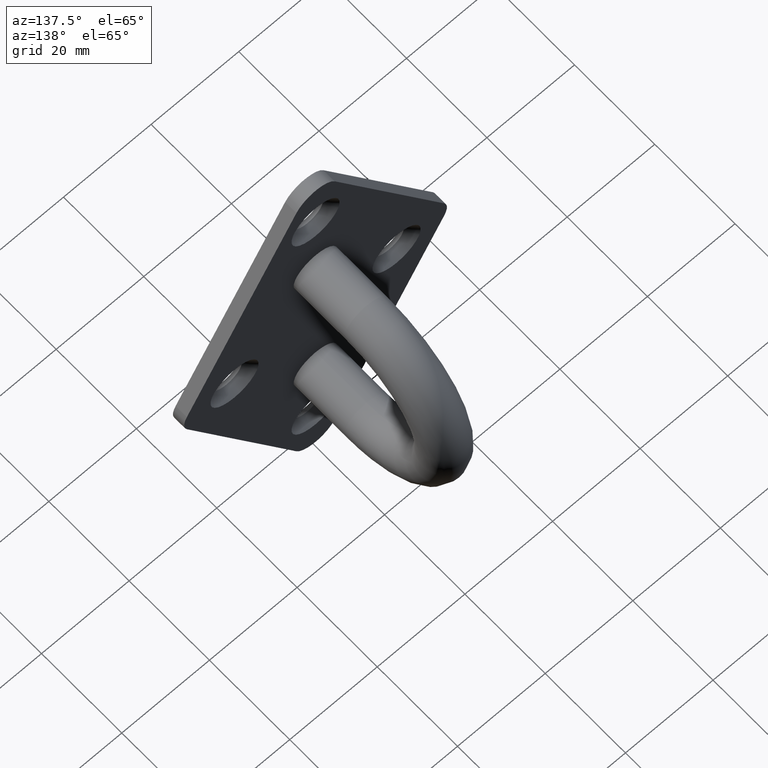
[diagram: clean part render]
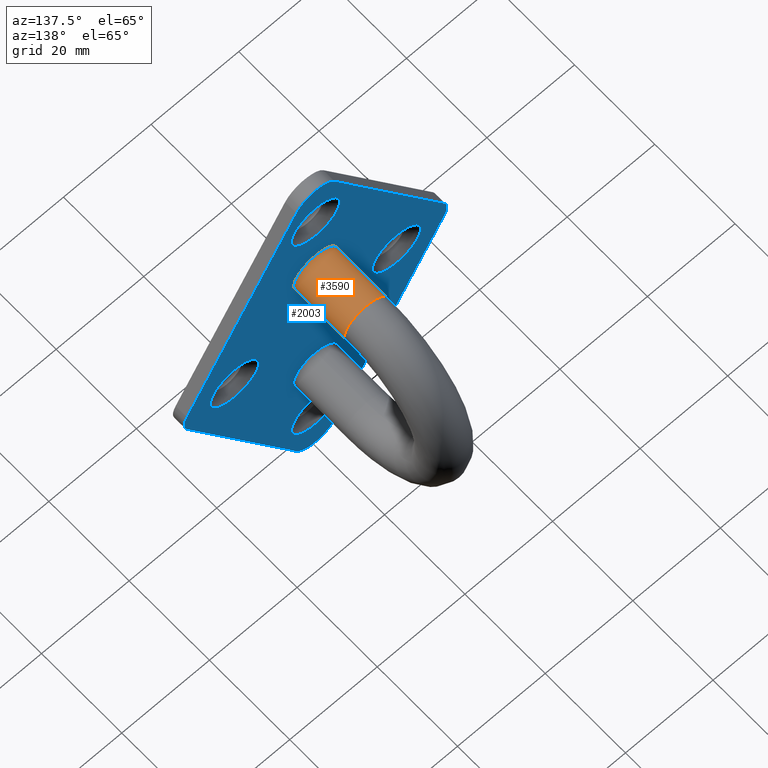
[diagram: same view with the hole feature highlighted: cylindrical wall and planar end face, labeled with their STEP entity ids]
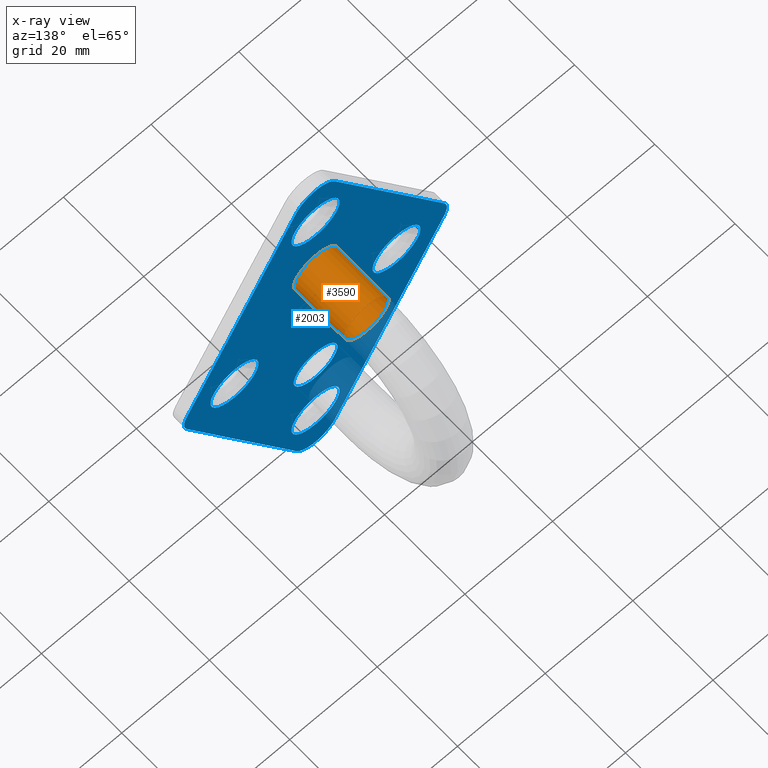
[diagram: x-ray of the same camera — body ghosted, the hole faces saturated]
A machine part, auxiliary view. The highlighted faces form one hole feature of diameter 10 mm: the cylindrical wall (entity #3590, orange) and its adjacent planar end face (entity #2003, blue) — they share a circular edge in the B-rep.
The next image is the same camera in x-ray (body ghosted, the hole faces saturated) — the bore reads through the body.
Wall:
#96 = CARTESIAN_POINT ( 'NONE',  ( 0.000000000000000000, 15.50000000000000000, 19.29999999999999716 ) ) ;
#1991 = EDGE_LOOP ( 'NONE', ( #7746 ) ) ;
#2823 = AXIS2_PLACEMENT_3D ( 'NONE', #96, #10144, #12265 ) ;
#3001 = EDGE_CURVE ( 'NONE', #12298, #12298, #7713, .T. ) ;
#3590 = ADVANCED_FACE ( 'NONE', ( #12464, #11826 ), #9765, .T. ) ;
#5575 = CARTESIAN_POINT ( 'NONE',  ( 0.000000000000000000, 15.50000000000000000, 14.29999999999999716 ) ) ;
#5907 = DIRECTION ( 'NONE',  ( 0.000000000000000000, 0.000000000000000000, -1.000000000000000000 ) ) ;
#6019 = EDGE_LOOP ( 'NONE', ( #10567 ) ) ;
#7428 = EDGE_CURVE ( 'NONE', #10242, #10242, #11366, .T. ) ;
#7713 = CIRCLE ( 'NONE', #8947, 5.000000000000000888 ) ;
#7746 = ORIENTED_EDGE ( 'NONE', *, *, #3001, .T. ) ;
#8947 = AXIS2_PLACEMENT_3D ( 'NONE', #13123, #10154, #11113 ) ;
#9765 = CYLINDRICAL_SURFACE ( 'NONE', #13031, 5.000000000000000888 ) ;
#10029 = DIRECTION ( 'NONE',  ( -0.000000000000000000, -1.000000000000000000, 1.119176436114069085E-16 ) ) ;
#10117 = CARTESIAN_POINT ( 'NONE',  ( 0.000000000000000000, 15.50000000000000000, 19.29999999999999716 ) ) ;
#10144 = DIRECTION ( 'NONE',  ( 0.000000000000000000, -1.000000000000000000, 0.000000000000000000 ) ) ;
#10154 = DIRECTION ( 'NONE',  ( 0.000000000000000000, 1.000000000000000000, 0.000000000000000000 ) ) ;
#10242 = VERTEX_POINT ( 'NONE', #5575 ) ;
#10567 = ORIENTED_EDGE ( 'NONE', *, *, #7428, .T. ) ;
#10772 = CARTESIAN_POINT ( 'NONE',  ( 0.000000000000000000, 2.800000000000000266, 24.29999999999999716 ) ) ;
#11113 = DIRECTION ( 'NONE',  ( 0.000000000000000000, 0.000000000000000000, 1.000000000000000000 ) ) ;
#11366 = CIRCLE ( 'NONE', #2823, 5.000000000000000888 ) ;
#11826 = FACE_OUTER_BOUND ( 'NONE', #6019, .T. ) ;
#12265 = DIRECTION ( 'NONE',  ( 0.000000000000000000, 0.000000000000000000, -1.000000000000000000 ) ) ;
#12298 = VERTEX_POINT ( 'NONE', #10772 ) ;
#12464 = FACE_OUTER_BOUND ( 'NONE', #1991, .T. ) ;
#13031 = AXIS2_PLACEMENT_3D ( 'NONE', #10117, #10029, #5907 ) ;
#13123 = CARTESIAN_POINT ( 'NONE',  ( 0.000000000000000000, 2.800000000000000266, 19.29999999999999716 ) ) ;
End face:
#40 = CARTESIAN_POINT ( 'NONE',  ( 4.370786380607743382, 2.799999999999999822, -47.42821465589310037 ) ) ;
#43 = FACE_BOUND ( 'NONE', #1431, .T. ) ;
#194 = FACE_BOUND ( 'NONE', #5339, .T. ) ;
#514 = ORIENTED_EDGE ( 'NONE', *, *, #2483, .T. ) ;
#556 = CARTESIAN_POINT ( 'NONE',  ( 4.370786380607849964, 2.799999999999999822, 47.42821465589315721 ) ) ;
#564 = AXIS2_PLACEMENT_3D ( 'NONE', #12410, #7268, #3238 ) ;
#656 = DIRECTION ( 'NONE',  ( 0.000000000000000000, 0.000000000000000000, 1.000000000000000000 ) ) ;
#842 = AXIS2_PLACEMENT_3D ( 'NONE', #4782, #1724, #11845 ) ;
#1176 = CARTESIAN_POINT ( 'NONE',  ( 29.37078638060770430, 2.799999999999999822, 2.428214655893143448 ) ) ;
#1392 = VERTEX_POINT ( 'NONE', #12918 ) ;
#1431 = EDGE_LOOP ( 'NONE', ( #12533 ) ) ;
#1465 = DIRECTION ( 'NONE',  ( -0.000000000000000000, -1.000000000000000000, -0.000000000000000000 ) ) ;
#1471 = CARTESIAN_POINT ( 'NONE',  ( -18.49999999999999645, 2.799999999999999822, 5.499999999999968026 ) ) ;
#1472 = VERTEX_POINT ( 'NONE', #12963 ) ;
#1496 = EDGE_CURVE ( 'NONE', #6882, #6882, #6424, .T. ) ;
#1626 = EDGE_CURVE ( 'NONE', #5239, #1392, #1980, .T. ) ;
#1724 = DIRECTION ( 'NONE',  ( 0.000000000000000000, 1.000000000000000000, 0.000000000000000000 ) ) ;
#1776 = LINE ( 'NONE', #11659, #8298 ) ;
#1807 = DIRECTION ( 'NONE',  ( 0.000000000000000000, 0.000000000000000000, 1.000000000000000000 ) ) ;
#1881 = AXIS2_PLACEMENT_3D ( 'NONE', #11242, #11279, #8116 ) ;
#1980 = CIRCLE ( 'NONE', #564, 5.000000000000001776 ) ;
#2003 = ADVANCED_FACE ( 'NONE', ( #7528, #194, #10546, #3220, #6734, #8185, #43 ), #9127, .T. ) ;
#2112 = CIRCLE ( 'NONE', #842, 5.000000000000004441 ) ;
#2483 = EDGE_CURVE ( 'NONE', #9907, #9907, #11646, .T. ) ;
#2670 = EDGE_LOOP ( 'NONE', ( #514 ) ) ;
#2718 = ORIENTED_EDGE ( 'NONE', *, *, #5976, .T. ) ;
#2827 = CARTESIAN_POINT ( 'NONE',  ( 18.50000000000000355, 2.799999999999999822, 0.000000000000000000 ) ) ;
#2962 = EDGE_CURVE ( 'NONE', #4549, #5529, #5005, .T. ) ;
#3001 = EDGE_CURVE ( 'NONE', #12298, #12298, #7713, .T. ) ;
#3052 = CARTESIAN_POINT ( 'NONE',  ( -29.37078638060769720, 2.799999999999999822, -2.428214655893150997 ) ) ;
#3220 = FACE_BOUND ( 'NONE', #2670, .T. ) ;
#3238 = DIRECTION ( 'NONE',  ( 0.000000000000000000, 0.000000000000000000, 1.000000000000000000 ) ) ;
#3243 = CARTESIAN_POINT ( 'NONE',  ( -1.295371307998414407E-13, 2.799999999999999822, -45.00000000000000000 ) ) ;
#3289 = CARTESIAN_POINT ( 'NONE',  ( -1.295371307998414407E-13, 2.799999999999999822, 45.00000000000000000 ) ) ;
#3362 = ORIENTED_EDGE ( 'NONE', *, *, #11705, .T. ) ;
#3583 = DIRECTION ( 'NONE',  ( 0.4856429311786298331, 0.000000000000000000, -0.8741572761215390397 ) ) ;
#3628 = ORIENTED_EDGE ( 'NONE', *, *, #2962, .T. ) ;
#3729 = CIRCLE ( 'NONE', #5512, 5.000000000000000888 ) ;
#3911 = CARTESIAN_POINT ( 'NONE',  ( -4.370786380607936117, 2.799999999999999822, 47.42821465589322116 ) ) ;
#4012 = DIRECTION ( 'NONE',  ( 0.000000000000000000, 0.000000000000000000, 1.000000000000000000 ) ) ;
#4045 = VERTEX_POINT ( 'NONE', #5628 ) ;
#4106 = ORIENTED_EDGE ( 'NONE', *, *, #7094, .T. ) ;
#4287 = DIRECTION ( 'NONE',  ( -0.000000000000000000, -1.000000000000000000, -0.000000000000000000 ) ) ;
#4341 = VERTEX_POINT ( 'NONE', #9648 ) ;
#4357 = CIRCLE ( 'NONE', #12479, 5.000000000000129674 ) ;
#4549 = VERTEX_POINT ( 'NONE', #10452 ) ;
#4782 = CARTESIAN_POINT ( 'NONE',  ( 25.00000000000000000, 2.799999999999999822, -1.943451736886036794E-15 ) ) ;
#4833 = VECTOR ( 'NONE', #3583, 1000.000000000000114 ) ;
#4902 = DIRECTION ( 'NONE',  ( -0.000000000000000000, -1.000000000000000000, -0.000000000000000000 ) ) ;
#5005 = LINE ( 'NONE', #556, #4833 ) ;
#5020 = ORIENTED_EDGE ( 'NONE', *, *, #8663, .T. ) ;
#5083 = VERTEX_POINT ( 'NONE', #40 ) ;
#5239 = VERTEX_POINT ( 'NONE', #10713 ) ;
#5339 = EDGE_LOOP ( 'NONE', ( #11576 ) ) ;
#5418 = AXIS2_PLACEMENT_3D ( 'NONE', #9349, #4287, #7394 ) ;
#5512 = AXIS2_PLACEMENT_3D ( 'NONE', #7565, #1465, #12757 ) ;
#5529 = VERTEX_POINT ( 'NONE', #1176 ) ;
#5546 = DIRECTION ( 'NONE',  ( 0.4856429311786300551, -0.000000000000000000, 0.8741572761215389287 ) ) ;
#5628 = CARTESIAN_POINT ( 'NONE',  ( 0.000000000000000000, 2.800000000000000266, -14.29999999999999716 ) ) ;
#5914 = ORIENTED_EDGE ( 'NONE', *, *, #6538, .T. ) ;
#5976 = EDGE_CURVE ( 'NONE', #5529, #1472, #2112, .T. ) ;
#6152 = DIRECTION ( 'NONE',  ( 0.000000000000000000, 0.000000000000000000, 1.000000000000000000 ) ) ;
#6155 = DIRECTION ( 'NONE',  ( -0.4856429311786300551, -0.000000000000000000, 0.8741572761215389287 ) ) ;
#6424 = CIRCLE ( 'NONE', #9200, 5.500000000000005329 ) ;
#6525 = ORIENTED_EDGE ( 'NONE', *, *, #1626, .T. ) ;
#6538 = EDGE_CURVE ( 'NONE', #1392, #11762, #1776, .T. ) ;
#6633 = CARTESIAN_POINT ( 'NONE',  ( 8.742422999178290951E-15, 2.799999999999999822, 43.00000000000000000 ) ) ;
#6729 = ORIENTED_EDGE ( 'NONE', *, *, #12131, .T. ) ;
#6734 = FACE_OUTER_BOUND ( 'NONE', #10393, .T. ) ;
#6842 = EDGE_LOOP ( 'NONE', ( #7910 ) ) ;
#6868 = EDGE_CURVE ( 'NONE', #11762, #4549, #9103, .T. ) ;
#6882 = VERTEX_POINT ( 'NONE', #12720 ) ;
#7066 = VECTOR ( 'NONE', #12810, 1000.000000000000114 ) ;
#7094 = EDGE_CURVE ( 'NONE', #1472, #5083, #10896, .T. ) ;
#7268 = DIRECTION ( 'NONE',  ( 0.000000000000000000, 1.000000000000000000, 0.000000000000000000 ) ) ;
#7303 = EDGE_LOOP ( 'NONE', ( #6729 ) ) ;
#7394 = DIRECTION ( 'NONE',  ( 0.000000000000000000, 0.000000000000000000, 1.000000000000000000 ) ) ;
#7517 = VERTEX_POINT ( 'NONE', #1471 ) ;
#7528 = FACE_BOUND ( 'NONE', #7303, .T. ) ;
#7533 = CIRCLE ( 'NONE', #9396, 5.500000000000005329 ) ;
#7565 = CARTESIAN_POINT ( 'NONE',  ( 0.000000000000000000, 2.800000000000000266, -19.29999999999999716 ) ) ;
#7657 = CARTESIAN_POINT ( 'NONE',  ( 29.37078638060770430, 2.799999999999999822, -2.428214655893143892 ) ) ;
#7713 = CIRCLE ( 'NONE', #8947, 5.000000000000000888 ) ;
#7888 = VECTOR ( 'NONE', #6155, 1000.000000000000114 ) ;
#7904 = DIRECTION ( 'NONE',  ( -0.000000000000000000, -1.000000000000000000, -0.000000000000000000 ) ) ;
#7910 = ORIENTED_EDGE ( 'NONE', *, *, #3001, .F. ) ;
#8116 = DIRECTION ( 'NONE',  ( 0.000000000000000000, -0.000000000000000000, 1.000000000000000000 ) ) ;
#8185 = FACE_BOUND ( 'NONE', #6842, .T. ) ;
#8298 = VECTOR ( 'NONE', #5546, 1000.000000000000114 ) ;
#8641 = CIRCLE ( 'NONE', #12471, 5.499999999999963585 ) ;
#8663 = EDGE_CURVE ( 'NONE', #12383, #5239, #13144, .T. ) ;
#8947 = AXIS2_PLACEMENT_3D ( 'NONE', #13123, #10154, #11113 ) ;
#9093 = EDGE_CURVE ( 'NONE', #4045, #4045, #3729, .T. ) ;
#9103 = CIRCLE ( 'NONE', #13050, 5.000000000000129674 ) ;
#9127 = PLANE ( 'NONE',  #1881 ) ;
#9200 = AXIS2_PLACEMENT_3D ( 'NONE', #2827, #7904, #1807 ) ;
#9349 = CARTESIAN_POINT ( 'NONE',  ( 8.742422999178290951E-15, 2.799999999999999822, 37.50000000000000000 ) ) ;
#9396 = AXIS2_PLACEMENT_3D ( 'NONE', #12867, #4902, #656 ) ;
#9648 = CARTESIAN_POINT ( 'NONE',  ( 8.742422999178290951E-15, 2.799999999999999822, -31.99999999999999289 ) ) ;
#9680 = CARTESIAN_POINT ( 'NONE',  ( -4.370786380607830424, 2.799999999999999822, -47.42821465589315721 ) ) ;
#9907 = VERTEX_POINT ( 'NONE', #6633 ) ;
#10134 = EDGE_LOOP ( 'NONE', ( #11555 ) ) ;
#10154 = DIRECTION ( 'NONE',  ( 0.000000000000000000, 1.000000000000000000, 0.000000000000000000 ) ) ;
#10227 = CARTESIAN_POINT ( 'NONE',  ( -18.49999999999999645, 2.799999999999999822, 4.531193156845206793E-15 ) ) ;
#10393 = EDGE_LOOP ( 'NONE', ( #6525, #5914, #12715, #3628, #2718, #4106, #3362, #5020 ) ) ;
#10430 = DIRECTION ( 'NONE',  ( 0.000000000000000000, 0.000000000000000000, -1.000000000000000000 ) ) ;
#10452 = CARTESIAN_POINT ( 'NONE',  ( 4.370786380607849964, 2.799999999999999822, 47.42821465589315721 ) ) ;
#10508 = DIRECTION ( 'NONE',  ( 0.000000000000000000, 1.000000000000000000, -0.000000000000000000 ) ) ;
#10546 = FACE_BOUND ( 'NONE', #10134, .T. ) ;
#10713 = CARTESIAN_POINT ( 'NONE',  ( -29.37078638060769720, 2.799999999999999822, -2.428214655893150997 ) ) ;
#10772 = CARTESIAN_POINT ( 'NONE',  ( 0.000000000000000000, 2.800000000000000266, 24.29999999999999716 ) ) ;
#10896 = LINE ( 'NONE', #7657, #7066 ) ;
#11113 = DIRECTION ( 'NONE',  ( 0.000000000000000000, 0.000000000000000000, 1.000000000000000000 ) ) ;
#11242 = CARTESIAN_POINT ( 'NONE',  ( -25.00000000000000000, 2.799999999999999822, 0.000000000000000000 ) ) ;
#11279 = DIRECTION ( 'NONE',  ( 0.000000000000000000, 1.000000000000000000, 0.000000000000000000 ) ) ;
#11555 = ORIENTED_EDGE ( 'NONE', *, *, #12584, .T. ) ;
#11576 = ORIENTED_EDGE ( 'NONE', *, *, #1496, .T. ) ;
#11646 = CIRCLE ( 'NONE', #5418, 5.500000000000005329 ) ;
#11659 = CARTESIAN_POINT ( 'NONE',  ( -4.370786380607830424, 2.799999999999999822, 47.42821465589315721 ) ) ;
#11705 = EDGE_CURVE ( 'NONE', #5083, #12383, #4357, .T. ) ;
#11762 = VERTEX_POINT ( 'NONE', #3911 ) ;
#11845 = DIRECTION ( 'NONE',  ( 0.000000000000000000, 0.000000000000000000, 1.000000000000000000 ) ) ;
#12131 = EDGE_CURVE ( 'NONE', #4341, #4341, #7533, .T. ) ;
#12189 = DIRECTION ( 'NONE',  ( -0.000000000000000000, -1.000000000000000000, -0.000000000000000000 ) ) ;
#12259 = DIRECTION ( 'NONE',  ( 0.000000000000000000, 1.000000000000000000, 0.000000000000000000 ) ) ;
#12298 = VERTEX_POINT ( 'NONE', #10772 ) ;
#12383 = VERTEX_POINT ( 'NONE', #9680 ) ;
#12410 = CARTESIAN_POINT ( 'NONE',  ( -25.00000000000000000, 2.799999999999999822, 0.000000000000000000 ) ) ;
#12471 = AXIS2_PLACEMENT_3D ( 'NONE', #10227, #12189, #4012 ) ;
#12479 = AXIS2_PLACEMENT_3D ( 'NONE', #3243, #12259, #6152 ) ;
#12533 = ORIENTED_EDGE ( 'NONE', *, *, #9093, .T. ) ;
#12584 = EDGE_CURVE ( 'NONE', #7517, #7517, #8641, .T. ) ;
#12715 = ORIENTED_EDGE ( 'NONE', *, *, #6868, .T. ) ;
#12720 = CARTESIAN_POINT ( 'NONE',  ( 18.50000000000000355, 2.799999999999999822, 5.500000000000005329 ) ) ;
#12757 = DIRECTION ( 'NONE',  ( 0.000000000000000000, 0.000000000000000000, 1.000000000000000000 ) ) ;
#12810 = DIRECTION ( 'NONE',  ( -0.4856429311786298331, 0.000000000000000000, -0.8741572761215390397 ) ) ;
#12867 = CARTESIAN_POINT ( 'NONE',  ( 8.742422999178290951E-15, 2.799999999999999822, -37.50000000000000000 ) ) ;
#12918 = CARTESIAN_POINT ( 'NONE',  ( -29.37078638060769720, 2.799999999999999822, 2.428214655893150997 ) ) ;
#12963 = CARTESIAN_POINT ( 'NONE',  ( 29.37078638060770430, 2.799999999999999822, -2.428214655893143892 ) ) ;
#13050 = AXIS2_PLACEMENT_3D ( 'NONE', #3289, #10508, #10430 ) ;
#13123 = CARTESIAN_POINT ( 'NONE',  ( 0.000000000000000000, 2.800000000000000266, 19.29999999999999716 ) ) ;
#13144 = LINE ( 'NONE', #3052, #7888 ) ;